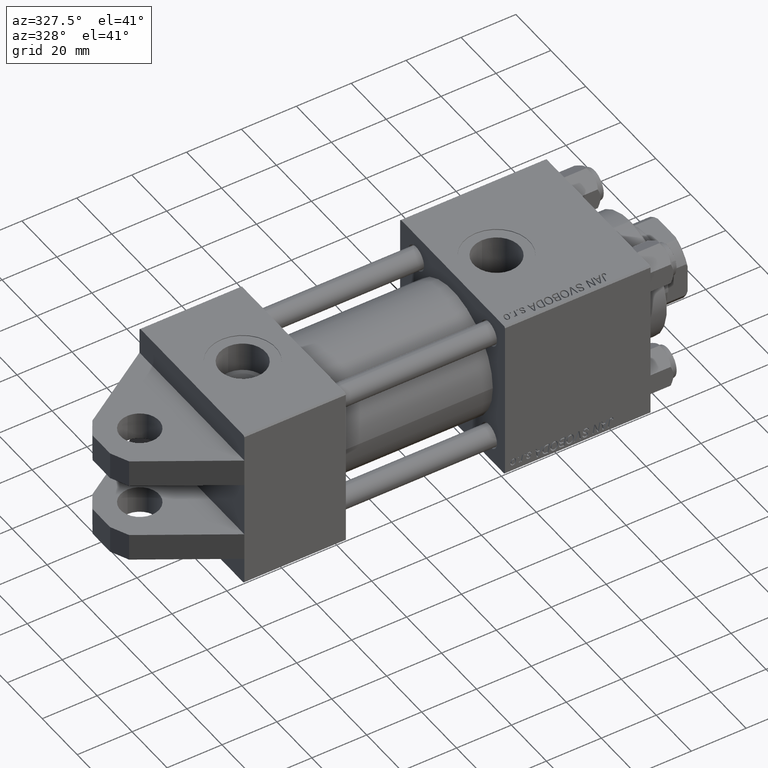
[diagram: clean part render]
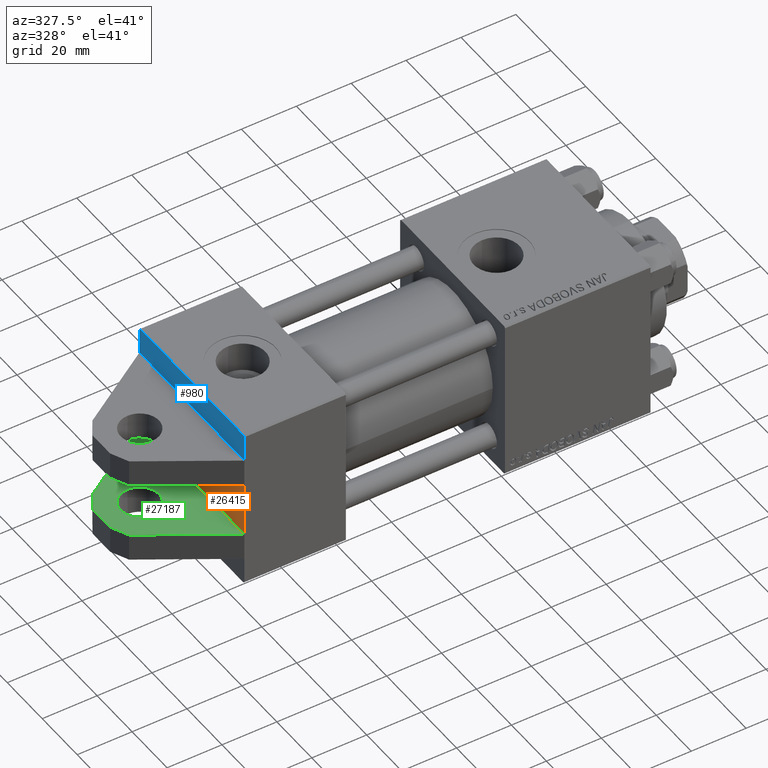
[diagram: same view with three faces highlighted in distinct colors, each labeled with its STEP entity id]
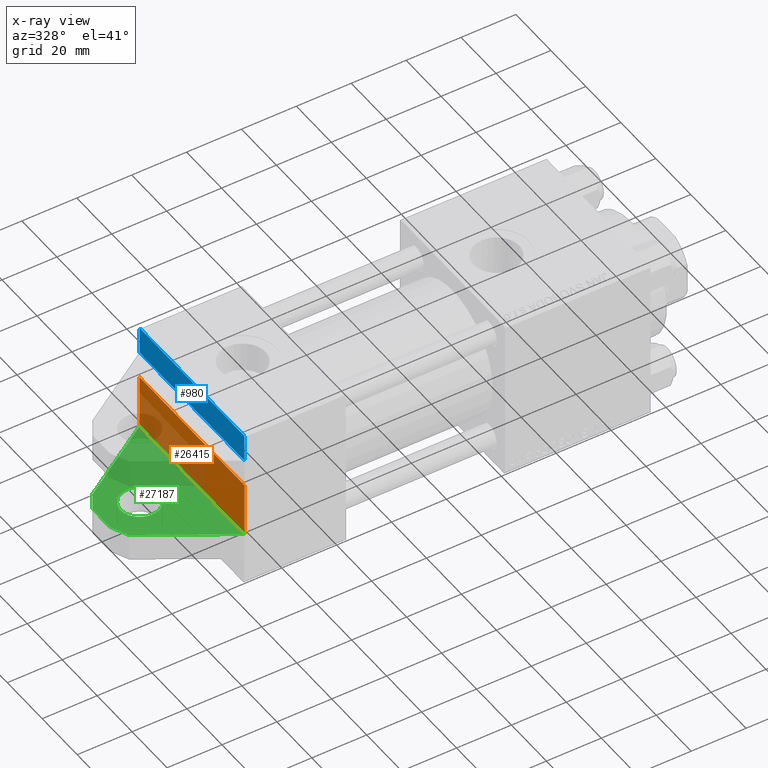
[diagram: x-ray of the same camera — body ghosted, the three highlighted faces saturated]
A machine part, auxiliary view with three faces highlighted in distinct colors.
The next image is the same camera in x-ray (body ghosted, the three faces saturated) — at least one of them is partly hidden behind the body in this view.
Their STEP definitions:

[orange] entity #26415 — the highlighted planar face has unit normal (-1, 0, -0).
#965 = EDGE_LOOP ( 'NONE', ( #50286, #1233, #13099, #30563 ) ) ;
#1233 = ORIENTED_EDGE ( 'NONE', *, *, #20415, .F. ) ;
#1368 = VECTOR ( 'NONE', #39622, 1000.000000000000000 ) ;
#1920 = FACE_OUTER_BOUND ( 'NONE', #965, .T. ) ;
#3720 = CARTESIAN_POINT ( 'NONE',  ( 0.000000000000000000, -10.00000000000000000, 29.99999999999999289 ) ) ;
#7980 = VERTEX_POINT ( 'NONE', #28629 ) ;
#7986 = VECTOR ( 'NONE', #22235, 1000.000000000000000 ) ;
#10526 = CARTESIAN_POINT ( 'NONE',  ( 0.000000000000000000, 0.000000000000000000, 0.000000000000000000 ) ) ;
#13099 = ORIENTED_EDGE ( 'NONE', *, *, #27495, .F. ) ;
#19559 = CARTESIAN_POINT ( 'NONE',  ( 0.000000000000000000, 29.99999999999999289, -30.00000000000000000 ) ) ;
#19581 = LINE ( 'NONE', #35490, #48650 ) ;
#20415 = EDGE_CURVE ( 'NONE', #7980, #49495, #35743, .T. ) ;
#21704 = PLANE ( 'NONE',  #28678 ) ;
#22235 = DIRECTION ( 'NONE',  ( 0.000000000000000000, 0.000000000000000000, -1.000000000000000000 ) ) ;
#23469 = LINE ( 'NONE', #19559, #1368 ) ;
#24547 = CARTESIAN_POINT ( 'NONE',  ( 0.000000000000000000, -10.00000000000000000, -30.00000000000000711 ) ) ;
#26415 = ADVANCED_FACE ( 'NONE', ( #1920 ), #21704, .T. ) ;
#27495 = EDGE_CURVE ( 'NONE', #44491, #7980, #19581, .T. ) ;
#28629 = CARTESIAN_POINT ( 'NONE',  ( 0.000000000000000000, -10.00000000000000000, 29.99999999999999289 ) ) ;
#28678 = AXIS2_PLACEMENT_3D ( 'NONE', #10526, #38107, #37841 ) ;
#29116 = EDGE_CURVE ( 'NONE', #40208, #49495, #23469, .T. ) ;
#30563 = ORIENTED_EDGE ( 'NONE', *, *, #49368, .T. ) ;
#32628 = VECTOR ( 'NONE', #43257, 1000.000000000000000 ) ;
#35490 = CARTESIAN_POINT ( 'NONE',  ( 0.000000000000000000, 29.99999999999999289, 30.00000000000000000 ) ) ;
#35743 = LINE ( 'NONE', #3720, #32628 ) ;
#37841 = DIRECTION ( 'NONE',  ( -0.000000000000000000, 0.000000000000000000, 1.000000000000000000 ) ) ;
#38107 = DIRECTION ( 'NONE',  ( -1.000000000000000000, 0.000000000000000000, -0.000000000000000000 ) ) ;
#39622 = DIRECTION ( 'NONE',  ( 0.000000000000000000, -1.000000000000000000, -1.156482317317871725E-16 ) ) ;
#40208 = VERTEX_POINT ( 'NONE', #40904 ) ;
#40290 = LINE ( 'NONE', #48105, #7986 ) ;
#40904 = CARTESIAN_POINT ( 'NONE',  ( 0.000000000000000000, 10.00000000000000888, -30.00000000000000355 ) ) ;
#43257 = DIRECTION ( 'NONE',  ( 0.000000000000000000, 0.000000000000000000, -1.000000000000000000 ) ) ;
#44491 = VERTEX_POINT ( 'NONE', #45510 ) ;
#45510 = CARTESIAN_POINT ( 'NONE',  ( 0.000000000000000000, 10.00000000000000888, 29.99999999999999645 ) ) ;
#47644 = DIRECTION ( 'NONE',  ( 0.000000000000000000, -1.000000000000000000, -1.156482317317871725E-16 ) ) ;
#48105 = CARTESIAN_POINT ( 'NONE',  ( 0.000000000000000000, 10.00000000000000000, 29.99999999999999289 ) ) ;
#48650 = VECTOR ( 'NONE', #47644, 1000.000000000000000 ) ;
#49368 = EDGE_CURVE ( 'NONE', #44491, #40208, #40290, .T. ) ;
#49495 = VERTEX_POINT ( 'NONE', #24547 ) ;
#50286 = ORIENTED_EDGE ( 'NONE', *, *, #29116, .T. ) ;

[blue] entity #980 — the highlighted planar face has unit normal (-1, 0, -0).
#26 = CARTESIAN_POINT ( 'NONE',  ( 0.000000000000000000, -20.00000000000000000, 29.99999999999999289 ) ) ;
#428 = CARTESIAN_POINT ( 'NONE',  ( -0.000000000000000000, -29.74999999999999645, 29.74999999999999645 ) ) ;
#435 = VECTOR ( 'NONE', #40473, 1000.000000000000114 ) ;
#684 = VERTEX_POINT ( 'NONE', #38069 ) ;
#980 = ADVANCED_FACE ( 'NONE', ( #50914 ), #23873, .T. ) ;
#4588 = LINE ( 'NONE', #428, #38284 ) ;
#8099 = EDGE_CURVE ( 'NONE', #23213, #19072, #48276, .T. ) ;
#8729 = CARTESIAN_POINT ( 'NONE',  ( 0.000000000000000000, -29.75000000000001066, -29.75000000000001066 ) ) ;
#10348 = ORIENTED_EDGE ( 'NONE', *, *, #26825, .T. ) ;
#11068 = DIRECTION ( 'NONE',  ( 0.000000000000000000, -1.000000000000000000, -1.156482317317871725E-16 ) ) ;
#12056 = VERTEX_POINT ( 'NONE', #21855 ) ;
#13539 = EDGE_CURVE ( 'NONE', #12056, #50146, #50616, .T. ) ;
#14962 = CARTESIAN_POINT ( 'NONE',  ( 0.000000000000000000, 29.99999999999999289, 30.00000000000000000 ) ) ;
#16308 = DIRECTION ( 'NONE',  ( -0.000000000000000000, 0.7071067811865474617, 0.7071067811865474617 ) ) ;
#17237 = VERTEX_POINT ( 'NONE', #41853 ) ;
#17562 = ORIENTED_EDGE ( 'NONE', *, *, #47491, .T. ) ;
#19072 = VERTEX_POINT ( 'NONE', #37377 ) ;
#19354 = LINE ( 'NONE', #51108, #38891 ) ;
#21241 = VECTOR ( 'NONE', #47637, 1000.000000000000000 ) ;
#21855 = CARTESIAN_POINT ( 'NONE',  ( 0.000000000000000000, -19.99999999999998934, 29.99999999999999289 ) ) ;
#22067 = CARTESIAN_POINT ( 'NONE',  ( 0.000000000000000000, 29.99999999999999289, -30.00000000000000000 ) ) ;
#23213 = VERTEX_POINT ( 'NONE', #25818 ) ;
#23873 = PLANE ( 'NONE',  #36049 ) ;
#25818 = CARTESIAN_POINT ( 'NONE',  ( 0.000000000000000000, -29.50000000000000000, -30.00000000000000711 ) ) ;
#26825 = EDGE_CURVE ( 'NONE', #12056, #17237, #32554, .T. ) ;
#30148 = DIRECTION ( 'NONE',  ( 0.000000000000000000, -1.000000000000000000, -1.156482317317871725E-16 ) ) ;
#30649 = DIRECTION ( 'NONE',  ( -0.000000000000000000, 0.000000000000000000, 1.000000000000000000 ) ) ;
#31428 = DIRECTION ( 'NONE',  ( -1.000000000000000000, 0.000000000000000000, -0.000000000000000000 ) ) ;
#32554 = LINE ( 'NONE', #26, #21241 ) ;
#32624 = ORIENTED_EDGE ( 'NONE', *, *, #39763, .T. ) ;
#33046 = LINE ( 'NONE', #22067, #44781 ) ;
#35530 = VECTOR ( 'NONE', #11068, 1000.000000000000000 ) ;
#36049 = AXIS2_PLACEMENT_3D ( 'NONE', #39750, #31428, #30649 ) ;
#36413 = CARTESIAN_POINT ( 'NONE',  ( 0.000000000000000000, -29.49999999999998579, 29.99999999999999289 ) ) ;
#37176 = EDGE_CURVE ( 'NONE', #684, #19072, #19354, .T. ) ;
#37377 = CARTESIAN_POINT ( 'NONE',  ( 0.000000000000000000, -30.00000000000000000, -29.50000000000001776 ) ) ;
#38069 = CARTESIAN_POINT ( 'NONE',  ( 0.000000000000000000, -30.00000000000000000, 29.49999999999999289 ) ) ;
#38284 = VECTOR ( 'NONE', #16308, 1000.000000000000114 ) ;
#38891 = VECTOR ( 'NONE', #47994, 1000.000000000000000 ) ;
#39750 = CARTESIAN_POINT ( 'NONE',  ( 0.000000000000000000, 0.000000000000000000, 0.000000000000000000 ) ) ;
#39763 = EDGE_CURVE ( 'NONE', #17237, #23213, #33046, .T. ) ;
#40473 = DIRECTION ( 'NONE',  ( 0.000000000000000000, -0.7071067811865474617, 0.7071067811865474617 ) ) ;
#40735 = EDGE_LOOP ( 'NONE', ( #10348, #32624, #48103, #43051, #17562, #43610 ) ) ;
#41853 = CARTESIAN_POINT ( 'NONE',  ( 0.000000000000000000, -20.00000000000000000, -30.00000000000000711 ) ) ;
#43051 = ORIENTED_EDGE ( 'NONE', *, *, #37176, .F. ) ;
#43610 = ORIENTED_EDGE ( 'NONE', *, *, #13539, .F. ) ;
#44781 = VECTOR ( 'NONE', #30148, 1000.000000000000000 ) ;
#47491 = EDGE_CURVE ( 'NONE', #684, #50146, #4588, .T. ) ;
#47637 = DIRECTION ( 'NONE',  ( 0.000000000000000000, 0.000000000000000000, -1.000000000000000000 ) ) ;
#47994 = DIRECTION ( 'NONE',  ( 0.000000000000000000, 0.000000000000000000, -1.000000000000000000 ) ) ;
#48103 = ORIENTED_EDGE ( 'NONE', *, *, #8099, .T. ) ;
#48276 = LINE ( 'NONE', #8729, #435 ) ;
#50146 = VERTEX_POINT ( 'NONE', #36413 ) ;
#50616 = LINE ( 'NONE', #14962, #35530 ) ;
#50914 = FACE_OUTER_BOUND ( 'NONE', #40735, .T. ) ;
#51108 = CARTESIAN_POINT ( 'NONE',  ( 0.000000000000000000, -30.00000000000000000, 29.99999999999999289 ) ) ;

[green] entity #27187 — the highlighted planar face has unit normal (0, 0, -1).
#1249 = CARTESIAN_POINT ( 'NONE',  ( -33.00000000000000000, 10.00000000000000000, 4.999999999999992895 ) ) ;
#1329 = LINE ( 'NONE', #48190, #16516 ) ;
#2494 = DIRECTION ( 'NONE',  ( -0.8489516879240903702, -0.000000000000000000, 0.5284704642369693062 ) ) ;
#5192 = EDGE_LOOP ( 'NONE', ( #32549, #10894, #34745, #44701, #15260, #45596 ) ) ;
#5666 = DIRECTION ( 'NONE',  ( 0.000000000000000000, -0.000000000000000000, 1.000000000000000000 ) ) ;
#7066 = EDGE_CURVE ( 'NONE', #45992, #40926, #26137, .T. ) ;
#7986 = VECTOR ( 'NONE', #22235, 1000.000000000000000 ) ;
#8899 = DIRECTION ( 'NONE',  ( 0.5284704642369689731, 0.000000000000000000, 0.8489516879240905922 ) ) ;
#9067 = DIRECTION ( 'NONE',  ( -0.000000000000000000, 1.000000000000000000, 0.000000000000000000 ) ) ;
#9499 = ORIENTED_EDGE ( 'NONE', *, *, #7066, .T. ) ;
#9941 = EDGE_CURVE ( 'NONE', #40926, #45992, #47875, .T. ) ;
#10470 = AXIS2_PLACEMENT_3D ( 'NONE', #32494, #32248, #36147 ) ;
#10894 = ORIENTED_EDGE ( 'NONE', *, *, #44663, .F. ) ;
#11507 = EDGE_CURVE ( 'NONE', #45788, #44491, #14250, .T. ) ;
#12884 = DIRECTION ( 'NONE',  ( 0.000000000000000000, 0.000000000000000000, 1.000000000000000000 ) ) ;
#14124 = DIRECTION ( 'NONE',  ( -0.4226182617406928355, -0.000000000000000000, 0.9063077870366529343 ) ) ;
#14250 = LINE ( 'NONE', #34830, #38773 ) ;
#15260 = ORIENTED_EDGE ( 'NONE', *, *, #49368, .F. ) ;
#15421 = DIRECTION ( 'NONE',  ( 0.000000000000000000, 0.000000000000000000, 1.000000000000000000 ) ) ;
#15852 = VECTOR ( 'NONE', #12884, 1000.000000000000000 ) ;
#16456 = DIRECTION ( 'NONE',  ( 0.000000000000000000, 1.000000000000000000, 0.000000000000000000 ) ) ;
#16497 = EDGE_LOOP ( 'NONE', ( #9499, #29666 ) ) ;
#16516 = VECTOR ( 'NONE', #8899, 1000.000000000000000 ) ;
#17492 = CARTESIAN_POINT ( 'NONE',  ( -33.00000000000000000, 10.00000000000000000, -5.000000000000007105 ) ) ;
#22235 = DIRECTION ( 'NONE',  ( 0.000000000000000000, 0.000000000000000000, -1.000000000000000000 ) ) ;
#22821 = CARTESIAN_POINT ( 'NONE',  ( -30.07125544613700185, 10.00000000000000000, -11.28071296416401026 ) ) ;
#23649 = FACE_OUTER_BOUND ( 'NONE', #5192, .T. ) ;
#26137 = CIRCLE ( 'NONE', #49423, 7.000000000000000000 ) ;
#27187 = ADVANCED_FACE ( 'NONE', ( #23649, #29345 ), #45200, .F. ) ;
#28764 = CARTESIAN_POINT ( 'NONE',  ( -33.00000000000000000, 10.00000000000000000, -5.000000000000007105 ) ) ;
#29068 = EDGE_CURVE ( 'NONE', #47361, #47552, #30010, .T. ) ;
#29345 = FACE_BOUND ( 'NONE', #16497, .T. ) ;
#29415 = CARTESIAN_POINT ( 'NONE',  ( -19.00000000000000000, 10.00000000000000000, -7.000000000000007105 ) ) ;
#29666 = ORIENTED_EDGE ( 'NONE', *, *, #9941, .T. ) ;
#30010 = LINE ( 'NONE', #17492, #43761 ) ;
#32036 = AXIS2_PLACEMENT_3D ( 'NONE', #44952, #9067, #5666 ) ;
#32248 = DIRECTION ( 'NONE',  ( 0.000000000000000000, 1.000000000000000000, 0.000000000000000000 ) ) ;
#32430 = CARTESIAN_POINT ( 'NONE',  ( -29.33769968283780827, 10.00000000000000000, 10.88323519731393674 ) ) ;
#32494 = CARTESIAN_POINT ( 'NONE',  ( -19.00000000000000000, 10.00000000000000000, -6.938893903907228378E-15 ) ) ;
#32549 = ORIENTED_EDGE ( 'NONE', *, *, #39483, .F. ) ;
#32668 = LINE ( 'NONE', #28764, #15852 ) ;
#34008 = LINE ( 'NONE', #42808, #39900 ) ;
#34745 = ORIENTED_EDGE ( 'NONE', *, *, #29068, .F. ) ;
#34830 = CARTESIAN_POINT ( 'NONE',  ( -29.33769968283780827, 10.00000000000000000, 10.88323519731393674 ) ) ;
#36147 = DIRECTION ( 'NONE',  ( 0.000000000000000000, 0.000000000000000000, 1.000000000000000000 ) ) ;
#37940 = DIRECTION ( 'NONE',  ( 0.8378263668388472585, 0.000000000000000000, 0.5459367903243170783 ) ) ;
#38773 = VECTOR ( 'NONE', #37940, 1000.000000000000114 ) ;
#39483 = EDGE_CURVE ( 'NONE', #51105, #45788, #1329, .T. ) ;
#39900 = VECTOR ( 'NONE', #2494, 1000.000000000000000 ) ;
#40208 = VERTEX_POINT ( 'NONE', #40904 ) ;
#40212 = CARTESIAN_POINT ( 'NONE',  ( -19.00000000000000000, 10.00000000000000000, 6.999999999999992895 ) ) ;
#40290 = LINE ( 'NONE', #48105, #7986 ) ;
#40904 = CARTESIAN_POINT ( 'NONE',  ( 0.000000000000000000, 10.00000000000000888, -30.00000000000000355 ) ) ;
#40926 = VERTEX_POINT ( 'NONE', #40212 ) ;
#42366 = EDGE_CURVE ( 'NONE', #40208, #47361, #34008, .T. ) ;
#42808 = CARTESIAN_POINT ( 'NONE',  ( -30.07125544613700185, 10.00000000000000000, -11.28071296416401026 ) ) ;
#43761 = VECTOR ( 'NONE', #14124, 1000.000000000000227 ) ;
#44491 = VERTEX_POINT ( 'NONE', #45510 ) ;
#44663 = EDGE_CURVE ( 'NONE', #47552, #51105, #32668, .T. ) ;
#44701 = ORIENTED_EDGE ( 'NONE', *, *, #42366, .F. ) ;
#44952 = CARTESIAN_POINT ( 'NONE',  ( 0.000000000000000000, 10.00000000000000000, 0.000000000000000000 ) ) ;
#45200 = PLANE ( 'NONE',  #32036 ) ;
#45510 = CARTESIAN_POINT ( 'NONE',  ( 0.000000000000000000, 10.00000000000000888, 29.99999999999999645 ) ) ;
#45596 = ORIENTED_EDGE ( 'NONE', *, *, #11507, .F. ) ;
#45788 = VERTEX_POINT ( 'NONE', #32430 ) ;
#45992 = VERTEX_POINT ( 'NONE', #29415 ) ;
#47361 = VERTEX_POINT ( 'NONE', #22821 ) ;
#47552 = VERTEX_POINT ( 'NONE', #50280 ) ;
#47875 = CIRCLE ( 'NONE', #10470, 7.000000000000000000 ) ;
#48105 = CARTESIAN_POINT ( 'NONE',  ( 0.000000000000000000, 10.00000000000000000, 29.99999999999999289 ) ) ;
#48190 = CARTESIAN_POINT ( 'NONE',  ( -33.00000000000000000, 10.00000000000000000, 4.999999999999992895 ) ) ;
#49368 = EDGE_CURVE ( 'NONE', #44491, #40208, #40290, .T. ) ;
#49423 = AXIS2_PLACEMENT_3D ( 'NONE', #51067, #16456, #15421 ) ;
#50280 = CARTESIAN_POINT ( 'NONE',  ( -33.00000000000000000, 10.00000000000000000, -5.000000000000007105 ) ) ;
#51067 = CARTESIAN_POINT ( 'NONE',  ( -19.00000000000000000, 10.00000000000000000, -6.938893903907228378E-15 ) ) ;
#51105 = VERTEX_POINT ( 'NONE', #1249 ) ;